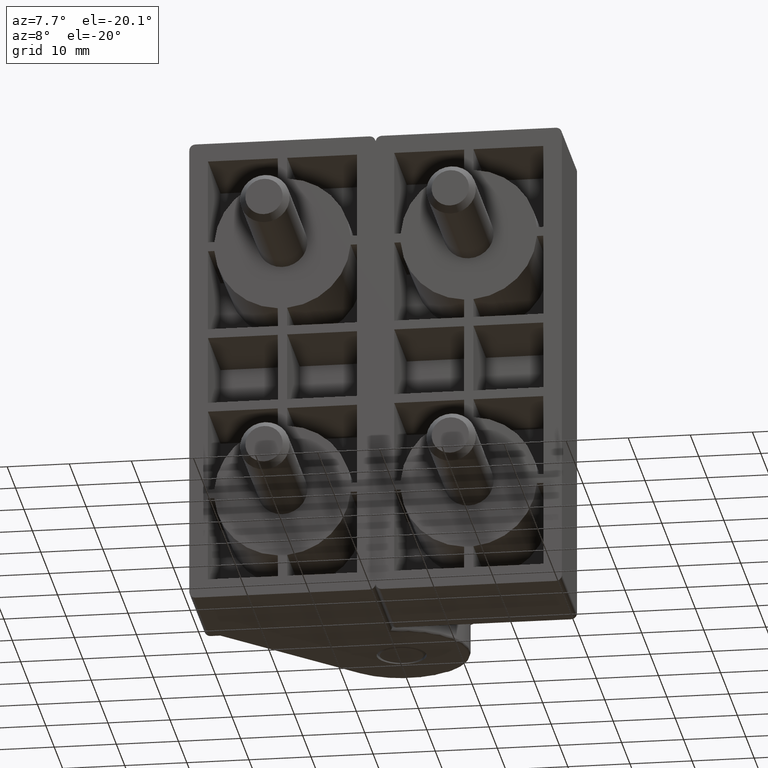
[diagram: clean part render]
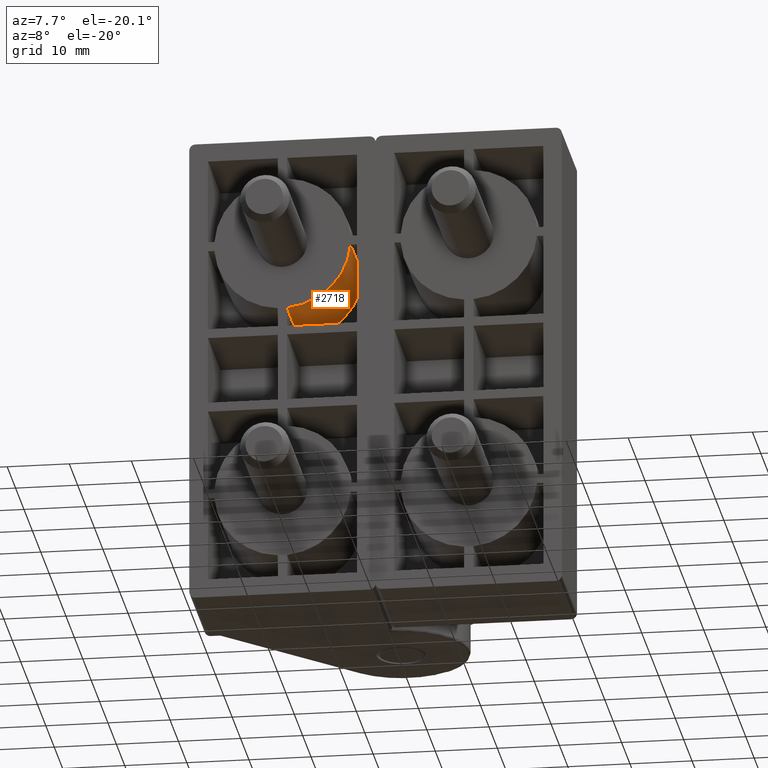
[diagram: same view with one face highlighted and labeled with its STEP entity id]
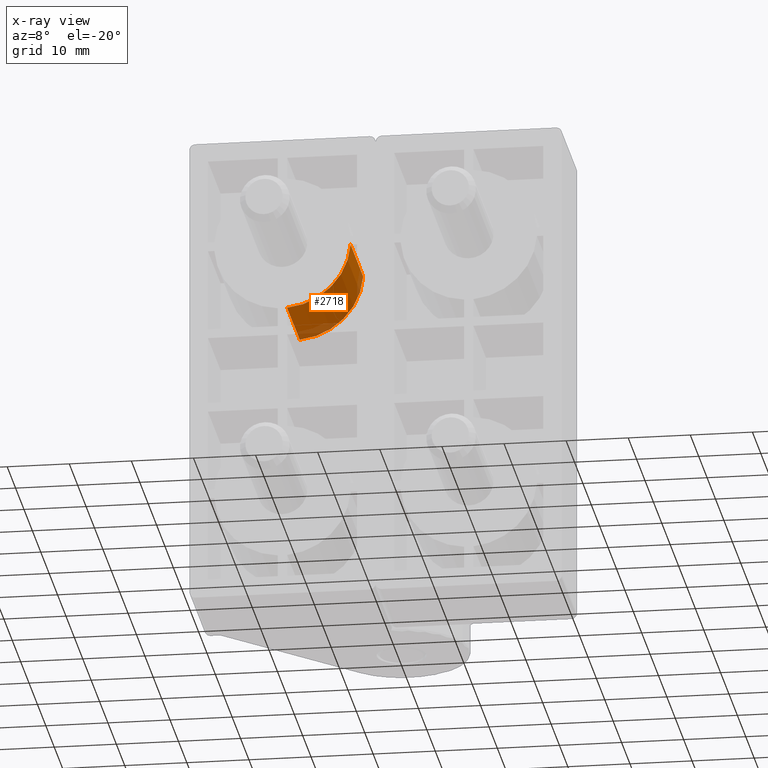
[diagram: x-ray of the same camera — body ghosted, the highlighted face saturated]
A machine part, auxiliary view. The second image highlights one B-rep face of the part: STEP entity #2718.
The next image is the same camera in x-ray: the body ghosted, the highlighted face saturated — about 13% of this face is hidden behind the body in this view.
In plain terms, the highlighted cylindrical surface (partial cylindrical patch) has radius 11 mm, axis along (0, -1, -0).
Its self-contained STEP definition (entity closure, byte-faithful):
#232=LINE('',#4525,#475);
#233=LINE('',#4528,#476);
#475=VECTOR('',#3682,15.);
#476=VECTOR('',#3685,15.);
#684=CYLINDRICAL_SURFACE('',#2981,11.);
#852=FACE_OUTER_BOUND('',#1042,.T.);
#1042=EDGE_LOOP('',(#2412,#2413,#2414,#2415));
#1155=CIRCLE('',#2879,11.);
#1181=CIRCLE('',#2982,11.);
#1333=VERTEX_POINT('',#4221);
#1335=VERTEX_POINT('',#4224);
#1413=VERTEX_POINT('',#4524);
#1414=VERTEX_POINT('',#4526);
#1625=EDGE_CURVE('',#1335,#1333,#1155,.T.);
#1759=EDGE_CURVE('',#1413,#1333,#232,.T.);
#1760=EDGE_CURVE('',#1414,#1413,#1181,.T.);
#1761=EDGE_CURVE('',#1414,#1335,#233,.T.);
#2412=ORIENTED_EDGE('',*,*,#1625,.T.);
#2413=ORIENTED_EDGE('',*,*,#1759,.F.);
#2414=ORIENTED_EDGE('',*,*,#1760,.F.);
#2415=ORIENTED_EDGE('',*,*,#1761,.T.);
#2718=ADVANCED_FACE('',(#852),#684,.T.);
#2879=AXIS2_PLACEMENT_3D('',#4225,#3369,#3370);
#2981=AXIS2_PLACEMENT_3D('',#4523,#3680,#3681);
#2982=AXIS2_PLACEMENT_3D('',#4527,#3683,#3684);
#3369=DIRECTION('center_axis',(0.,1.,0.));
#3370=DIRECTION('ref_axis',(0.,0.,-1.));
#3680=DIRECTION('center_axis',(0.,-1.,0.));
#3681=DIRECTION('ref_axis',(0.,0.,-1.));
#3682=DIRECTION('',(0.,-1.,0.));
#3683=DIRECTION('center_axis',(0.,1.,0.));
#3684=DIRECTION('ref_axis',(0.,0.,-1.));
#3685=DIRECTION('',(0.,-1.,0.));
#4221=CARTESIAN_POINT('',(14.2500000000004,-31.,-10.025597966176));
#4224=CARTESIAN_POINT('',(4.02559796617687,-31.,-20.25));
#4225=CARTESIAN_POINT('Origin',(15.0000000000009,-31.,-21.));
#4523=CARTESIAN_POINT('Origin',(15.0000000000009,-16.,-21.));
#4524=CARTESIAN_POINT('',(14.2500000000004,-16.,-10.025597966176));
#4525=CARTESIAN_POINT('',(14.2500000000004,-16.,-10.025597966176));
#4526=CARTESIAN_POINT('',(4.02559796617687,-16.,-20.25));
#4527=CARTESIAN_POINT('Origin',(15.0000000000009,-16.,-21.));
#4528=CARTESIAN_POINT('',(4.02559796617687,-16.,-20.25));